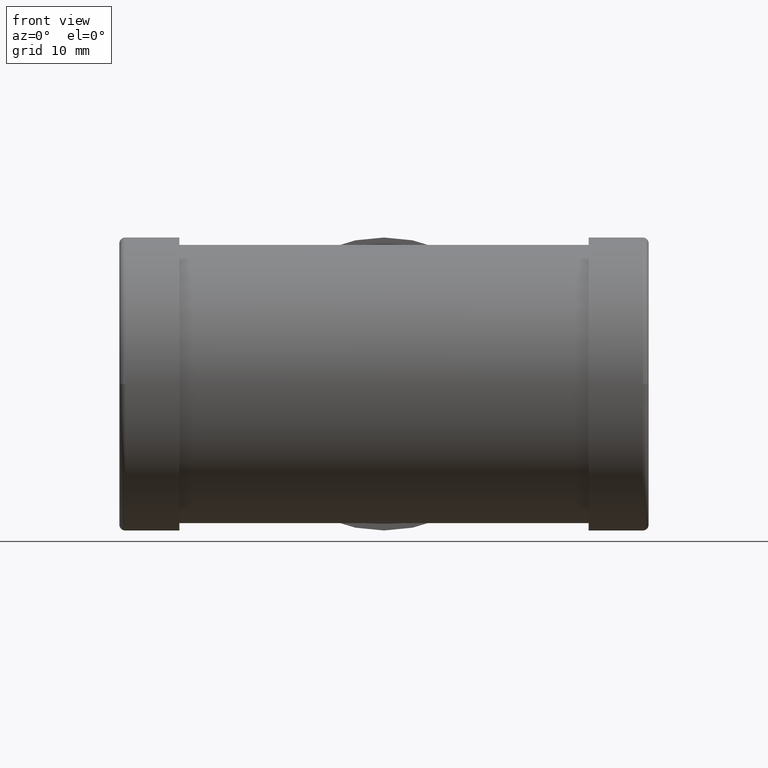
[diagram: clean part render]
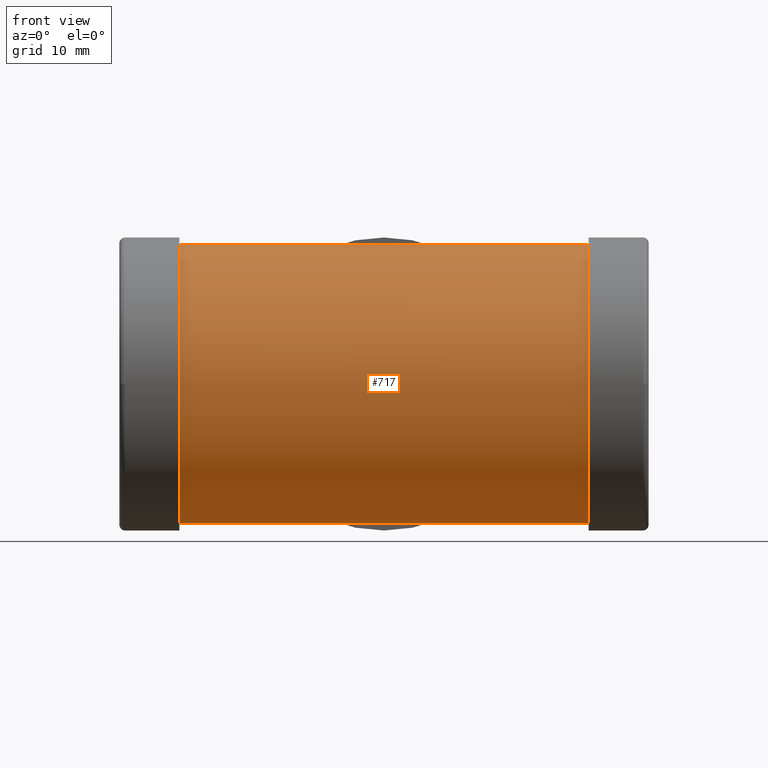
[diagram: same view with one face highlighted and labeled with its STEP entity id]
A machine part, front view. The second image highlights one B-rep face of the part: STEP entity #717.
In plain terms, the highlighted cylindrical surface (partial cylindrical patch) has radius 14.725 mm, axis along (1, -0, 0).
Its self-contained STEP definition (entity closure, byte-faithful):
#28 = ORIENTED_EDGE ( 'NONE', *, *, #1136, .T. ) ;
#48 = AXIS2_PLACEMENT_3D ( 'NONE', #898, #1121, #210 ) ;
#85 = EDGE_CURVE ( 'NONE', #1054, #539, #270, .T. ) ;
#108 = ORIENTED_EDGE ( 'NONE', *, *, #85, .T. ) ;
#159 = CIRCLE ( 'NONE', #682, 14.72499999999999787 ) ;
#161 = VECTOR ( 'NONE', #255, 1000.000000000000000 ) ;
#173 = LINE ( 'NONE', #1190, #761 ) ;
#197 = CARTESIAN_POINT ( 'NONE',  ( -21.65000000000000213, 1.725633230170963324E-27, 14.72499999999999787 ) ) ;
#200 = FACE_OUTER_BOUND ( 'NONE', #750, .T. ) ;
#210 = DIRECTION ( 'NONE',  ( 0.000000000000000000, -6.217248937900877415E-15, 1.000000000000000000 ) ) ;
#224 = EDGE_CURVE ( 'NONE', #1120, #466, #159, .T. ) ;
#255 = DIRECTION ( 'NONE',  ( 1.000000000000000000, -3.491481338843133750E-15, 0.000000000000000000 ) ) ;
#270 = LINE ( 'NONE', #274, #161 ) ;
#274 = CARTESIAN_POINT ( 'NONE',  ( -6.296161804083269354E-30, -1.803292411744477265E-15, -14.72499999999999787 ) ) ;
#306 = ORIENTED_EDGE ( 'NONE', *, *, #456, .F. ) ;
#378 = VERTEX_POINT ( 'NONE', #563 ) ;
#453 = CARTESIAN_POINT ( 'NONE',  ( -21.65000000000000213, -1.803292411744557729E-15, -14.72499999999999787 ) ) ;
#456 = EDGE_CURVE ( 'NONE', #1120, #378, #645, .T. ) ;
#465 = CARTESIAN_POINT ( 'NONE',  ( 21.65000000000000213, 2.341930812374878797E-28, 14.72499999999999787 ) ) ;
#466 = VERTEX_POINT ( 'NONE', #453 ) ;
#481 = ORIENTED_EDGE ( 'NONE', *, *, #1015, .F. ) ;
#501 = CARTESIAN_POINT ( 'NONE',  ( 0.000000000000000000, 0.000000000000000000, 0.000000000000000000 ) ) ;
#539 = VERTEX_POINT ( 'NONE', #1039 ) ;
#563 = CARTESIAN_POINT ( 'NONE',  ( 0.000000000000000000, 0.000000000000000000, 14.72499999999999787 ) ) ;
#615 = DIRECTION ( 'NONE',  ( 1.000000000000000000, -3.491481338843133750E-15, 0.000000000000000000 ) ) ;
#616 = CIRCLE ( 'NONE', #48, 14.72499999999999787 ) ;
#618 = CYLINDRICAL_SURFACE ( 'NONE', #633, 14.72499999999999787 ) ;
#633 = AXIS2_PLACEMENT_3D ( 'NONE', #501, #711, #806 ) ;
#634 = ORIENTED_EDGE ( 'NONE', *, *, #783, .T. ) ;
#645 = LINE ( 'NONE', #851, #868 ) ;
#670 = ORIENTED_EDGE ( 'NONE', *, *, #224, .T. ) ;
#682 = AXIS2_PLACEMENT_3D ( 'NONE', #1224, #997, #1304 ) ;
#711 = DIRECTION ( 'NONE',  ( 1.000000000000000000, -3.491481338843133750E-15, 0.000000000000000000 ) ) ;
#717 = ADVANCED_FACE ( 'NONE', ( #200 ), #618, .T. ) ;
#750 = EDGE_LOOP ( 'NONE', ( #670, #28, #108, #634, #481, #306 ) ) ;
#761 = VECTOR ( 'NONE', #1282, 1000.000000000000000 ) ;
#783 = EDGE_CURVE ( 'NONE', #539, #1074, #616, .T. ) ;
#806 = DIRECTION ( 'NONE',  ( 0.000000000000000000, 0.000000000000000000, 1.000000000000000000 ) ) ;
#851 = CARTESIAN_POINT ( 'NONE',  ( 0.000000000000000000, 0.000000000000000000, 14.72499999999999787 ) ) ;
#861 = CARTESIAN_POINT ( 'NONE',  ( 0.000000000000000000, 0.000000000000000000, -14.72499999999999787 ) ) ;
#868 = VECTOR ( 'NONE', #947, 1000.000000000000000 ) ;
#898 = CARTESIAN_POINT ( 'NONE',  ( 21.65000000000000213, -7.559057098595384661E-14, 0.000000000000000000 ) ) ;
#947 = DIRECTION ( 'NONE',  ( 1.000000000000000000, -3.491481338843133750E-15, 0.000000000000000000 ) ) ;
#997 = DIRECTION ( 'NONE',  ( 1.000000000000000000, -1.047444401652940007E-14, -0.000000000000000000 ) ) ;
#1015 = EDGE_CURVE ( 'NONE', #378, #1074, #173, .T. ) ;
#1039 = CARTESIAN_POINT ( 'NONE',  ( 21.65000000000000213, -1.803292411744311210E-15, -14.72499999999999787 ) ) ;
#1054 = VERTEX_POINT ( 'NONE', #861 ) ;
#1074 = VERTEX_POINT ( 'NONE', #465 ) ;
#1118 = CARTESIAN_POINT ( 'NONE',  ( -6.296161804083269354E-30, -1.803292411744477265E-15, -14.72499999999999787 ) ) ;
#1120 = VERTEX_POINT ( 'NONE', #197 ) ;
#1121 = DIRECTION ( 'NONE',  ( -1.000000000000000000, 3.491481338843133355E-15, -0.000000000000000000 ) ) ;
#1136 = EDGE_CURVE ( 'NONE', #466, #1054, #1231, .T. ) ;
#1173 = VECTOR ( 'NONE', #615, 1000.000000000000000 ) ;
#1190 = CARTESIAN_POINT ( 'NONE',  ( 0.000000000000000000, 0.000000000000000000, 14.72499999999999787 ) ) ;
#1224 = CARTESIAN_POINT ( 'NONE',  ( -21.65000000000000213, 2.267717129578615398E-13, 0.000000000000000000 ) ) ;
#1231 = LINE ( 'NONE', #1118, #1173 ) ;
#1282 = DIRECTION ( 'NONE',  ( 1.000000000000000000, -3.491481338843133750E-15, 0.000000000000000000 ) ) ;
#1304 = DIRECTION ( 'NONE',  ( 0.000000000000000000, -1.509903313490212895E-14, 1.000000000000000000 ) ) ;